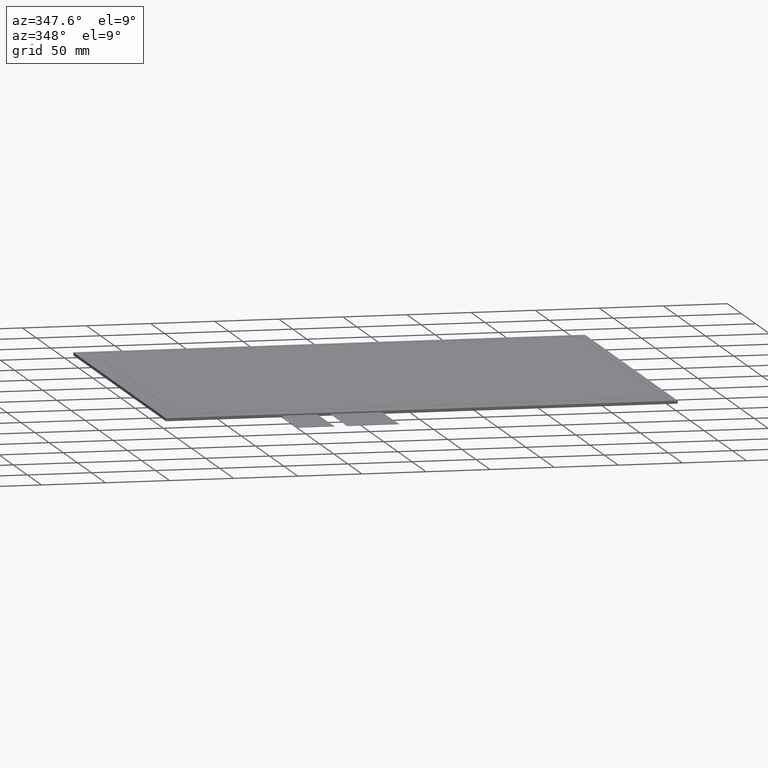
[diagram: clean part render]
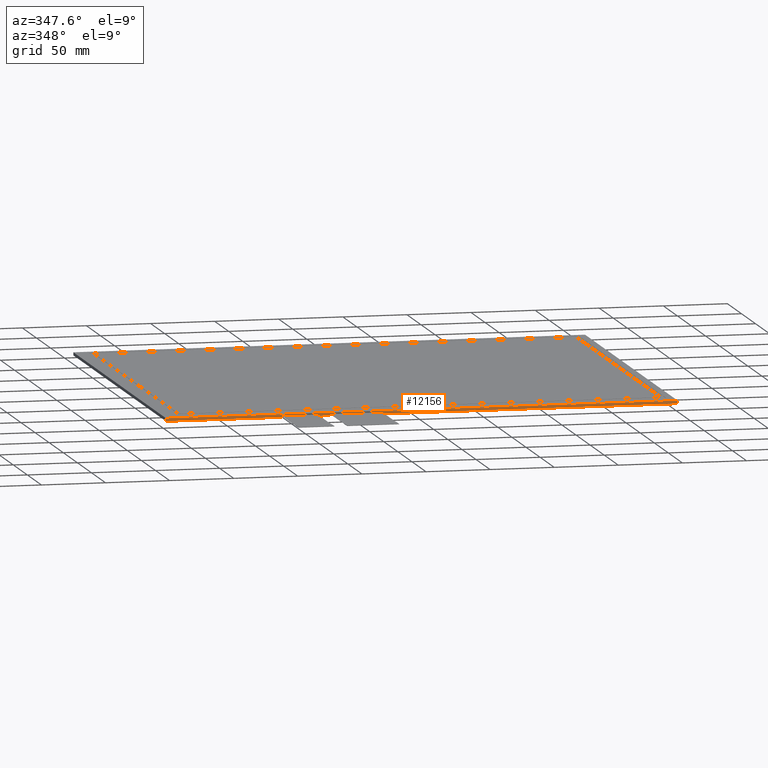
[diagram: same view with one face highlighted and labeled with its STEP entity id]
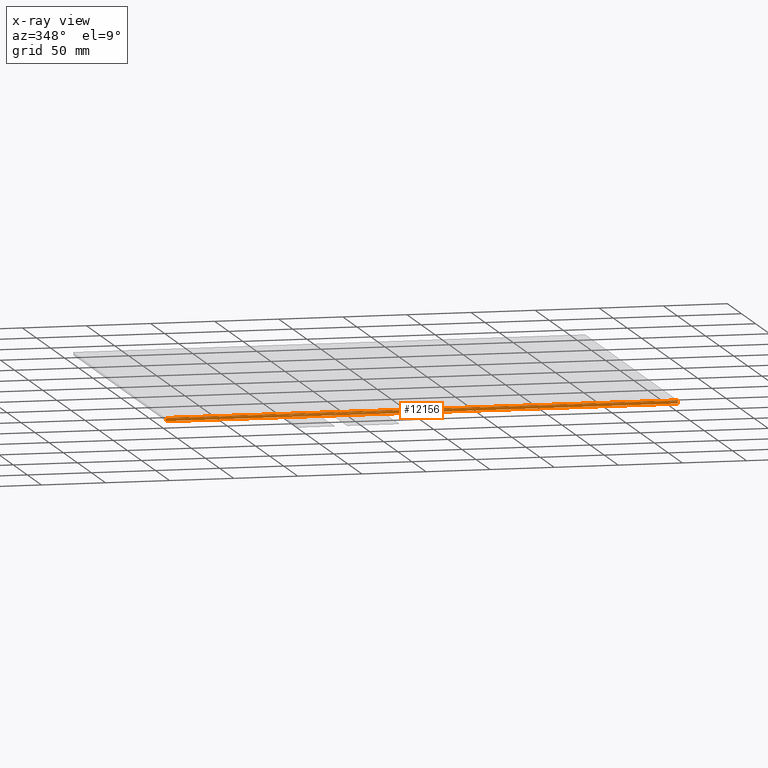
[diagram: x-ray of the same camera — body ghosted, the highlighted face saturated]
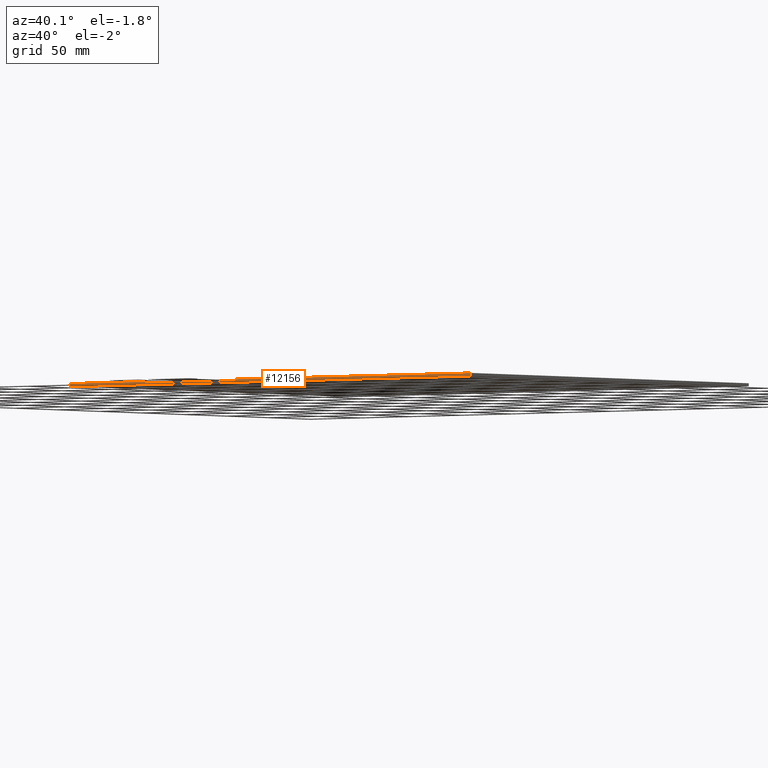
[diagram: same view with one face highlighted and labeled with its STEP entity id]
A machine part, auxiliary view. The second image highlights one B-rep face of the part: STEP entity #12156.
The next image is the same camera in x-ray: the body ghosted, the highlighted face saturated — about 0% of this face is hidden behind the body in this view.
A second angle (auxiliary view) of the same face is appended — the face is thin or edge-on in the first view.
In plain terms, the highlighted planar face has unit normal (0, -1, 0).
Its self-contained STEP definition (entity closure, byte-faithful):
#127=FACE_BOUND('',#1857,.T.);
#128=FACE_BOUND('',#1858,.T.);
#698=PLANE('',#12762);
#1276=FACE_OUTER_BOUND('',#1856,.T.);
#1856=EDGE_LOOP('',(#11551,#11552,#11553,#11554));
#1857=EDGE_LOOP('',(#11555,#11556,#11557,#11558));
#1858=EDGE_LOOP('',(#11559,#11560,#11561,#11562));
#3507=LINE('',#18958,#5215);
#3515=LINE('',#18974,#5223);
#3526=LINE('',#18996,#5234);
#3528=LINE('',#18999,#5236);
#3529=LINE('',#19001,#5237);
#3531=LINE('',#19006,#5239);
#3533=LINE('',#19009,#5241);
#3534=LINE('',#19011,#5242);
#3561=LINE('',#19068,#5269);
#3565=LINE('',#19075,#5273);
#3566=LINE('',#19078,#5274);
#3567=LINE('',#19079,#5275);
#5215=VECTOR('',#15529,10.);
#5223=VECTOR('',#15541,10.);
#5234=VECTOR('',#15562,10.);
#5236=VECTOR('',#15566,10.);
#5237=VECTOR('',#15569,10.);
#5239=VECTOR('',#15573,10.);
#5241=VECTOR('',#15577,10.);
#5242=VECTOR('',#15580,10.);
#5269=VECTOR('',#15627,10.);
#5273=VECTOR('',#15633,10.);
#5274=VECTOR('',#15636,10.);
#5275=VECTOR('',#15637,10.);
#6391=VERTEX_POINT('',#18955);
#6392=VERTEX_POINT('',#18957);
#6397=VERTEX_POINT('',#18971);
#6398=VERTEX_POINT('',#18973);
#6403=VERTEX_POINT('',#18993);
#6404=VERTEX_POINT('',#18995);
#6405=VERTEX_POINT('',#19003);
#6406=VERTEX_POINT('',#19005);
#6425=VERTEX_POINT('',#19065);
#6426=VERTEX_POINT('',#19067);
#6428=VERTEX_POINT('',#19073);
#6429=VERTEX_POINT('',#19077);
#8083=EDGE_CURVE('',#6392,#6391,#3507,.T.);
#8091=EDGE_CURVE('',#6398,#6397,#3515,.T.);
#8102=EDGE_CURVE('',#6404,#6403,#3526,.T.);
#8104=EDGE_CURVE('',#6397,#6404,#3528,.T.);
#8105=EDGE_CURVE('',#6403,#6398,#3529,.T.);
#8107=EDGE_CURVE('',#6406,#6405,#3531,.T.);
#8109=EDGE_CURVE('',#6391,#6406,#3533,.T.);
#8110=EDGE_CURVE('',#6405,#6392,#3534,.T.);
#8137=EDGE_CURVE('',#6425,#6426,#3561,.T.);
#8141=EDGE_CURVE('',#6425,#6428,#3565,.T.);
#8142=EDGE_CURVE('',#6429,#6428,#3566,.T.);
#8143=EDGE_CURVE('',#6426,#6429,#3567,.T.);
#11551=ORIENTED_EDGE('',*,*,#8137,.F.);
#11552=ORIENTED_EDGE('',*,*,#8141,.T.);
#11553=ORIENTED_EDGE('',*,*,#8142,.F.);
#11554=ORIENTED_EDGE('',*,*,#8143,.F.);
#11555=ORIENTED_EDGE('',*,*,#8102,.T.);
#11556=ORIENTED_EDGE('',*,*,#8105,.T.);
#11557=ORIENTED_EDGE('',*,*,#8091,.T.);
#11558=ORIENTED_EDGE('',*,*,#8104,.T.);
#11559=ORIENTED_EDGE('',*,*,#8107,.T.);
#11560=ORIENTED_EDGE('',*,*,#8110,.T.);
#11561=ORIENTED_EDGE('',*,*,#8083,.T.);
#11562=ORIENTED_EDGE('',*,*,#8109,.T.);
#12156=ADVANCED_FACE('',(#1276,#127,#128),#698,.T.);
#12762=AXIS2_PLACEMENT_3D('',#19076,#15634,#15635);
#15529=DIRECTION('',(0.,0.,1.));
#15541=DIRECTION('',(0.,0.,1.));
#15562=DIRECTION('',(0.,0.,-1.));
#15566=DIRECTION('',(1.,0.,0.));
#15569=DIRECTION('',(-1.,0.,0.));
#15573=DIRECTION('',(0.,0.,-1.));
#15577=DIRECTION('',(1.,0.,0.));
#15580=DIRECTION('',(-1.,0.,0.));
#15627=DIRECTION('',(1.,0.,0.));
#15633=DIRECTION('',(0.,0.,-1.));
#15634=DIRECTION('center_axis',(0.,-1.,0.));
#15635=DIRECTION('ref_axis',(-1.,0.,0.));
#15636=DIRECTION('',(-1.,0.,0.));
#15637=DIRECTION('',(0.,0.,-1.));
#18955=CARTESIAN_POINT('',(-111.9,-169.25,-1.1));
#18957=CARTESIAN_POINT('',(-111.9,-169.25,-1.2));
#18958=CARTESIAN_POINT('',(-111.9,-169.25,-0.55));
#18971=CARTESIAN_POINT('',(-73.8999999999999,-169.25,-1.1));
#18973=CARTESIAN_POINT('',(-73.8999999999999,-169.25,-1.2));
#18974=CARTESIAN_POINT('',(-73.9,-169.25,-0.55));
#18993=CARTESIAN_POINT('',(-33.3999999999999,-169.25,-1.2));
#18995=CARTESIAN_POINT('',(-33.3999999999999,-169.25,-1.1));
#18996=CARTESIAN_POINT('',(-33.3999999999999,-169.25,-0.55));
#18999=CARTESIAN_POINT('',(71.7250000000001,-169.25,-1.1));
#19001=CARTESIAN_POINT('',(71.7250000000001,-169.25,-1.2));
#19003=CARTESIAN_POINT('',(-83.8999999999999,-169.25,-1.2));
#19005=CARTESIAN_POINT('',(-83.8999999999999,-169.25,-1.1));
#19006=CARTESIAN_POINT('',(-83.8999999999999,-169.25,-0.55));
#19009=CARTESIAN_POINT('',(49.6000000000001,-169.25,-1.1));
#19011=CARTESIAN_POINT('',(49.6000000000001,-169.25,-1.2));
#19065=CARTESIAN_POINT('',(-202.1,-169.25,0.));
#19067=CARTESIAN_POINT('',(197.1,-169.25,0.));
#19068=CARTESIAN_POINT('',(-202.1,-169.25,0.));
#19073=CARTESIAN_POINT('',(-202.1,-169.25,-2.35));
#19075=CARTESIAN_POINT('',(-202.1,-169.25,0.));
#19076=CARTESIAN_POINT('Origin',(197.1,-169.25,0.));
#19077=CARTESIAN_POINT('',(197.1,-169.25,-2.35));
#19078=CARTESIAN_POINT('',(-202.1,-169.25,-2.35));
#19079=CARTESIAN_POINT('',(197.1,-169.25,0.));